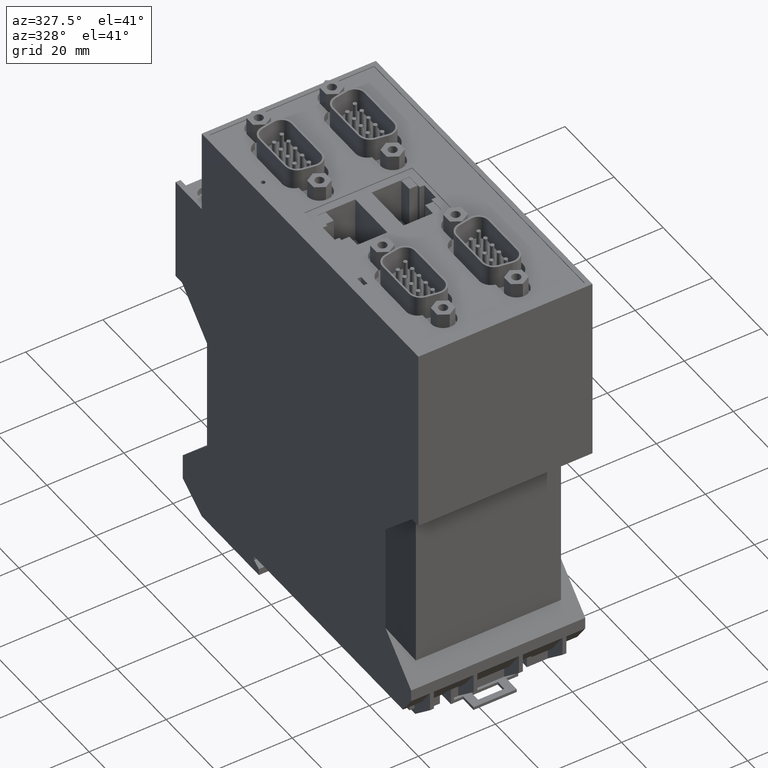
[diagram: clean part render]
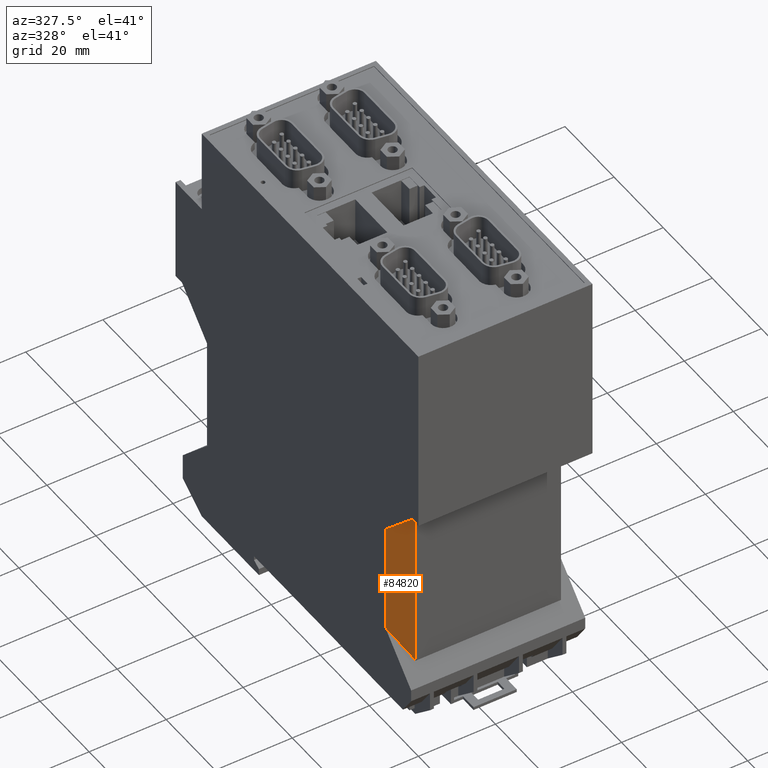
[diagram: same view with one face highlighted and labeled with its STEP entity id]
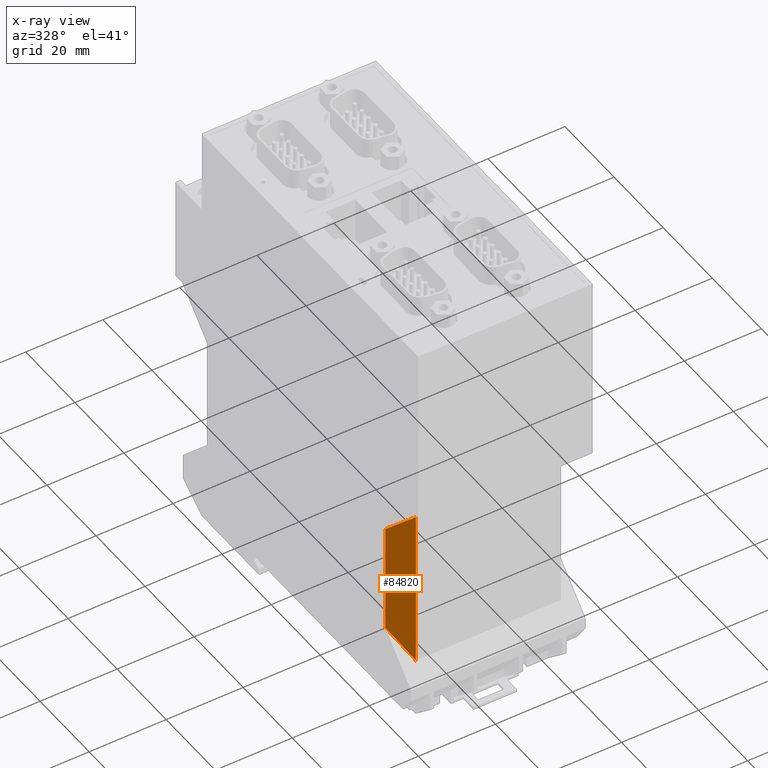
[diagram: x-ray of the same camera — body ghosted, the highlighted face saturated]
A machine part, auxiliary view. The second image highlights one B-rep face of the part: STEP entity #84820.
The next image is the same camera in x-ray: the body ghosted, the highlighted face saturated — about 0% of this face is hidden behind the body in this view.
In plain terms, the highlighted planar face has unit normal (-0.866, -0.5, 0).
Its self-contained STEP definition (entity closure, byte-faithful):
#1480=CARTESIAN_POINT('',(-53.5500000000017,47.1000000000011,-11.3));
#1490=VERTEX_POINT('',#1480);
#1520=CARTESIAN_POINT('',(-53.5500000000017,24.,-11.3));
#1530=DIRECTION('',(0.,1.,0.));
#1540=VECTOR('',#1530,1.);
#1550=LINE('',#1520,#1540);
#1560=CARTESIAN_POINT('',(-53.5500000000018,18.4999999999986,-11.3));
#1570=VERTEX_POINT('',#1560);
#1580=EDGE_CURVE('',#1570,#1490,#1550,.T.);
#83930=CARTESIAN_POINT('',(24.,-30.45,-56.0735133756561));
#83940=DIRECTION('',(0.65465367070798,-0.654653670707975,
-0.377964473009226));
#83950=VECTOR('',#83940,1.);
#83960=LINE('',#83930,#83950);
#83970=CARTESIAN_POINT('',(-60.0499999999987,53.599999999998,
-7.54722325026919));
#83980=VERTEX_POINT('',#83970);
#83990=EDGE_CURVE('',#83980,#1490,#83960,.T.);
#84590=CARTESIAN_POINT('',(-30.7355117766538,53.7000000000004,
-24.4719509171734));
#84600=DIRECTION('',(-0.499999999999997,0.,-0.86602540378444));
#84610=DIRECTION('',(-0.86602540378444,0.,0.499999999999997));
#84620=AXIS2_PLACEMENT_3D('',#84590,#84600,#84610);
#84630=PLANE('',#84620);
#84640=ORIENTED_EDGE('',*,*,#83990,.T.);
#84650=CARTESIAN_POINT('',(-60.0499999999989,24.,-7.54722325026908));
#84660=DIRECTION('',(-6.60000000000173E-15,-1.,3.8105117766525E-15));
#84670=VECTOR('',#84660,1.);
#84680=LINE('',#84650,#84670);
#84690=CARTESIAN_POINT('',(-60.049999999999,12.0000000000025,
-7.54722325026901));
#84700=VERTEX_POINT('',#84690);
#84710=EDGE_CURVE('',#83980,#84700,#84680,.T.);
#84720=ORIENTED_EDGE('',*,*,#84710,.F.);
#84730=CARTESIAN_POINT('',(24.,96.049999999986,-56.0735133756561));
#84740=DIRECTION('',(-0.65465367070803,-0.654653670707909,
0.377964473009255));
#84750=VECTOR('',#84740,1.);
#84760=LINE('',#84730,#84750);
#84770=EDGE_CURVE('',#1570,#84700,#84760,.T.);
#84780=ORIENTED_EDGE('',*,*,#84770,.T.);
#84790=ORIENTED_EDGE('',*,*,#1580,.F.);
#84800=EDGE_LOOP('',(#84790,#84780,#84720,#84640));
#84810=FACE_OUTER_BOUND('',#84800,.T.);
#84820=ADVANCED_FACE('',(#84810),#84630,.T.);